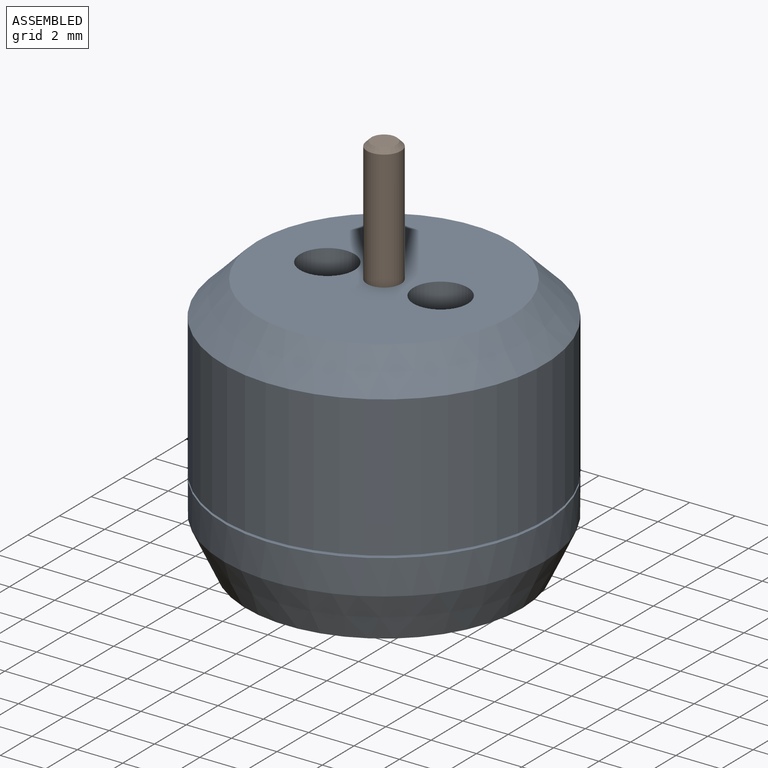
[diagram: assembled view]
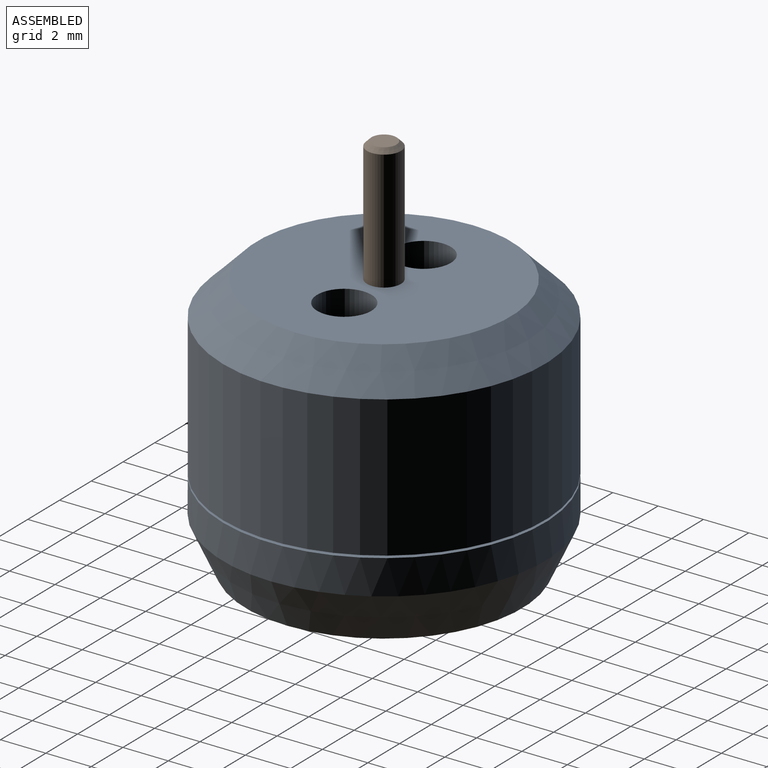
[diagram: assembled view, second angle]
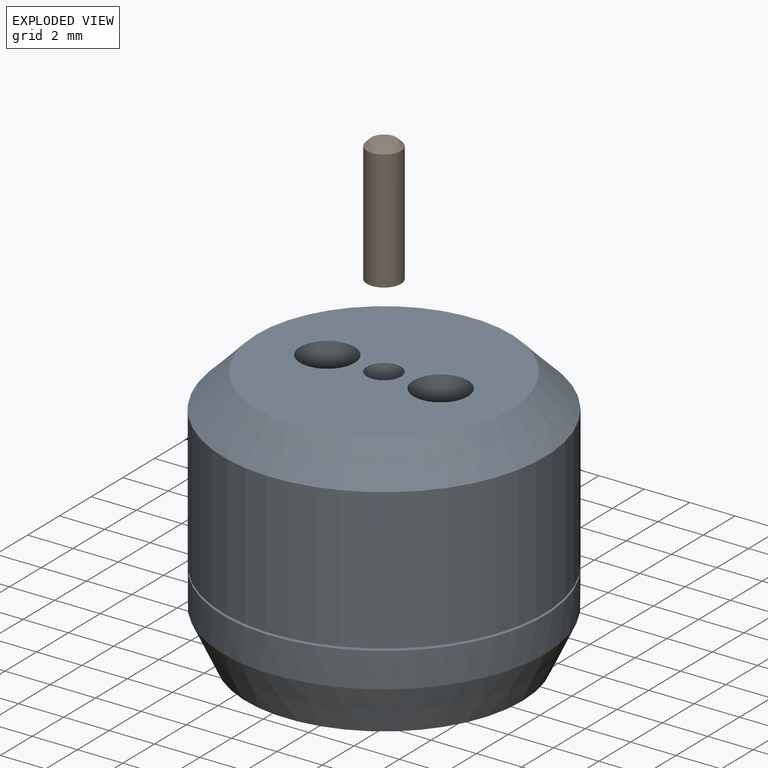
[diagram: exploded view]
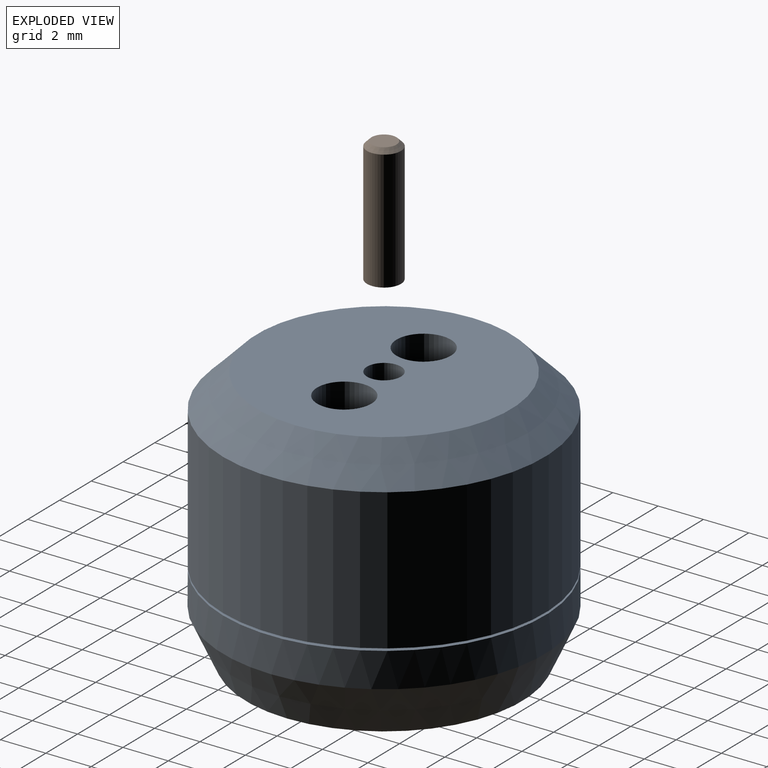
[diagram: exploded view, second angle]
ASSEMBLY  parts=2 mates=2
PART A: 29 faces, bbox 14.2x14.2x11.5 mm
  f0: plane 1.5x1.5mm, normal (0,0,1), area 1.8mm2, adj f8
  f1: plane 12.2x12.2mm, normal (0,0,-1), area 86.2mm2, adj f10,f17,f20,f23,f26,f27
  f2: cylinder r=7.1mm len=14.2mm, axis (0,0,-1), area 68.3mm2, adj f3,f10
  f3: plane 14.2x14.2mm, normal (0,0,1), area 136.3mm2, adj f2,f4,f17,f20,f23,f26
  f4: cylinder r=1.13mm len=2.26mm, axis (0,0,-1), area 0.7mm2, adj f3,f5
  f5: plane 14.2x14.2mm, normal (0,0,-1), area 136.3mm2, adj f4,f6,f15,f18,f21,f24
  f6: cylinder r=7.1mm len=14.2mm, axis (0,0,-1), area 277.6mm2, adj f5,f9
  f7: plane 11.2x11.2mm, normal (0,0,1), area 87.7mm2, adj f8,f9,f12,f14
  f8: cylinder r=0.75mm len=1.89mm, axis (0,0,-1), area 8.9mm2, adj f0,f7
  f9: cone r=7.1mm half-angle=45deg, axis (0,0,-1), area 84.6mm2, adj f6,f7
  f10: cone r=6.1mm half-angle=25deg, axis (0,0,1), area 98.1mm2, adj f1,f2
  f11: cone r=0mm half-angle=59deg, axis (0,0,1), area 5.3mm2, adj f12
  f12: cylinder r=1.2mm len=4mm, axis (0,0,1), area 30.2mm2, adj f7,f11
  f13: cone r=0mm half-angle=59deg, axis (0,0,1), area 5.3mm2, adj f14
  f14: cylinder r=1.2mm len=4mm, axis (0,0,1), area 30.2mm2, adj f7,f13
  f15: cylinder r=1.2mm len=2.4mm, axis (0,0,-1), area 1.7mm2, adj f5,f16
  f16: cone r=0mm half-angle=59deg, axis (0,0,-1), area 5.3mm2, adj f15
  f17: cylinder r=1.2mm len=3.68mm, axis (0,0,-1), area 27.7mm2, adj f1,f3
  f18: cylinder r=1.2mm len=2.4mm, axis (0,0,-1), area 1.7mm2, adj f5,f19
  f19: cone r=0mm half-angle=59deg, axis (0,0,-1), area 5.3mm2, adj f18
  f20: cylinder r=1.2mm len=3.68mm, axis (0,0,-1), area 27.7mm2, adj f1,f3
  f21: cylinder r=1.2mm len=2.4mm, axis (0,0,-1), area 1.7mm2, adj f5,f22
  f22: cone r=0mm half-angle=59deg, axis (0,0,-1), area 5.3mm2, adj f21
  f23: cylinder r=1.2mm len=3.68mm, axis (0,0,-1), area 27.7mm2, adj f1,f3
  f24: cylinder r=1.2mm len=2.4mm, axis (0,0,-1), area 1.7mm2, adj f5,f25
  f25: cone r=0mm half-angle=59deg, axis (0,0,-1), area 5.3mm2, adj f24
  f26: cylinder r=1.2mm len=3.68mm, axis (0,0,-1), area 27.7mm2, adj f1,f3
  f27: cylinder r=2mm len=4mm, axis (0,0,-1), area 1.3mm2, adj f1,f28
  f28: plane 4x4mm, normal (0,0,-1), area 12.6mm2, adj f27
PART B: 4 faces, bbox 1.5x1.5x5.5 mm
  f0: plane 1.1x1.1mm, normal (0,0,1), area 1mm2, adj f3
  f1: plane 1.5x1.5mm, normal (0,0,-1), area 1.8mm2, adj f2
  f2: cylinder r=0.75mm len=5.3mm, axis (0,0,1), area 25mm2, adj f1,f3
  f3: cone r=0.55mm half-angle=45deg, axis (0,0,-1), area 1.2mm2, adj f0,f2
PLACE A t=(1.17,7.93,6.41)mm
PLACE B t=(1.17,7.93,6.41)mm
MATE revolute A.f2 <-> B.f2  axis (0,0,-1) through (1.17,7.93,17.91)mm
MATE planar B.f3 <-> A.f2  axis (0,0,-1) through (1.17,7.93,17.91)mm
